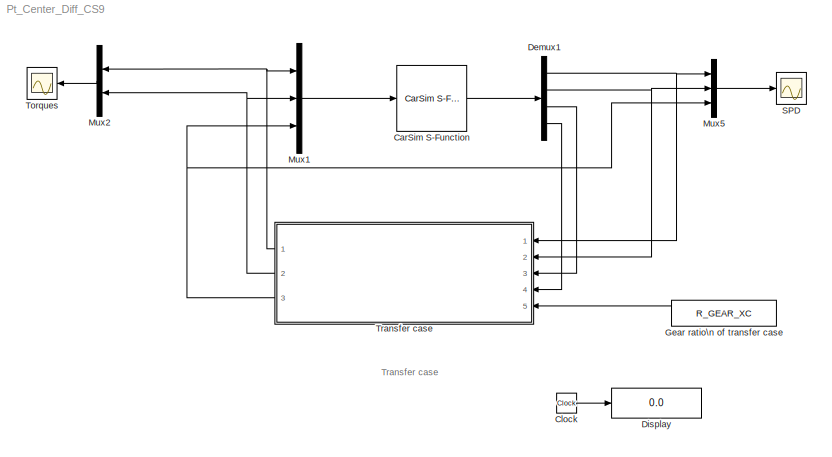
MODEL Pt_Center_Diff_CS9
KIND model
CONFIG PreLoadFcn = cd Extensions/Simulink/pt_center_diff\nRun_ft4wd_eclass\nlsd_parameta_eclass\ncd ../../..
BLOCK [Reference] CarSim S-Function  REF=Solver_SF/CarSim S-Function
  Ports = [1, 1]
  Priority = 1
  SID = 1
  SIMFILE = simfile.sim
  SourceBlock = Solver_SF/CarSim S-Function
  SourceType = Vehicle math model library
BLOCK [Clock] Clock
  Decimation = 10
  SID = 2
BLOCK [Demux] Demux1
  Ports = [1, 4]
  SID = 3
BLOCK [Display] Display
  Decimation = 1
  Lockdown = off
  Ports = [1]
  SID = 4
BLOCK [Constant] Gear ratio\n of transfer case
  SID = 5
  Value = R_GEAR_XC
BLOCK [Mux] Mux1
  DisplayOption = bar
  Inputs = 3
  Ports = [3, 1]
  SID = 7
BLOCK [Mux] Mux2
  DisplayOption = bar
  Inputs = 2
  Ports = [2, 1]
  SID = 8
BLOCK [Mux] Mux5
  DisplayOption = bar
  Inputs = 3
  Ports = [3, 1]
  SID = 9
BLOCK [Scope] SPD
  DataFormat = StructureWithTime
  Floating = off
  LimitDataPoints = off
  NumInputPorts = 1
  Ports = [1]
  SID = 10
  YMax = 3627.22
  YMin = -130.178
BLOCK [Scope] Torques
  DataFormat = StructureWithTime
  Floating = off
  LimitDataPoints = off
  NumInputPorts = 1
  Ports = [1]
  SID = 11
  YMax = 1200
  YMin = 0
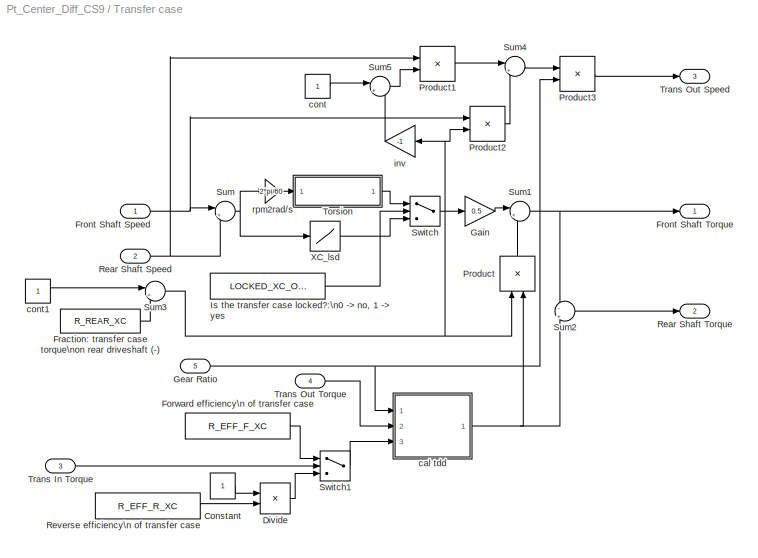
BLOCK [SubSystem] Transfer case
  FunctionWithSeparateData = off
  MaskHideContents = off
  MinAlgLoopOccurrences = off
  Opaque = off
  Ports = [5, 3]
  PropExecContextOutsideSubsystem = off
  RTWSystemCode = Auto
  RequestExecContextInheritance = off
  SID = 12
BLOCK [Constant] Transfer case/Constant
  SID = 18
BLOCK [Product] Transfer case/Divide
  Inputs = */
  Ports = [2, 1]
  RndMeth = Floor
  SID = 19
  SaturateOnIntegerOverflow = off
BLOCK [Constant] Transfer case/Forward efficiency\n of  transfer case
  SID = 20
  Value = R_EFF_F_XC
BLOCK [Constant] Transfer case/Fraction: transfer case torque\non rear driveshaft (-)
  SID = 21
  Value = R_REAR_XC
BLOCK [Inport] Transfer case/Front Shaft Speed
  IconDisplay = Port number
  SID = 13
BLOCK [Outport] Transfer case/Front Shaft Torque
  IconDisplay = Port number
  SID = 60
BLOCK [Gain] Transfer case/Gain
  Gain = 0.5
  SID = 22
BLOCK [Inport] Transfer case/Gear Ratio
  IconDisplay = Port number
  Port = 5
  SID = 17
BLOCK [Constant] Transfer case/Is the transfer case locked?:\n0 -> no, 1 -> yes
  SID = 23
  Value = LOCKED_XC_OPT
BLOCK [Product] Transfer case/Product
  Ports = [2, 1]
  RndMeth = Floor
  SID = 24
BLOCK [Product] Transfer case/Product1
  Ports = [2, 1]
  RndMeth = Floor
  SID = 25
BLOCK [Product] Transfer case/Product2
  Ports = [2, 1]
  RndMeth = Floor
  SID = 26
BLOCK [Product] Transfer case/Product3
  Ports = [2, 1]
  RndMeth = Floor
  SID = 27
BLOCK [Inport] Transfer case/Rear Shaft Speed
  IconDisplay = Port number
  Port = 2
  SID = 14
BLOCK [Outport] Transfer case/Rear Shaft Torque
  IconDisplay = Port number
  Port = 2
  SID = 61
BLOCK [Constant] Transfer case/Reverse efficiency\n of transfer case
  SID = 28
  Value = R_EFF_R_XC
BLOCK [Sum] Transfer case/Sum
  IconShape = round
  Inputs = |+-
  Ports = [2, 1]
  SID = 29
BLOCK [Sum] Transfer case/Sum1
  IconShape = round
  Inputs = |++
  Ports = [2, 1]
  SID = 30
BLOCK [Sum] Transfer case/Sum2
  IconShape = round
  Inputs = -|+
  Ports = [2, 1]
  SID = 31
BLOCK [Sum] Transfer case/Sum3
  IconShape = round
  Inputs = |+-
  Ports = [2, 1]
  SID = 32
BLOCK [Sum] Transfer case/Sum4
  IconShape = round
  Inputs = |++
  Ports = [2, 1]
  SID = 33
BLOCK [Sum] Transfer case/Sum5
  IconShape = round
  Inputs = |++
  Ports = [2, 1]
  SID = 34
BLOCK [Switch] Transfer case/Switch
  SID = 35
  Threshold = 0.5
BLOCK [Switch] Transfer case/Switch1
  SID = 36
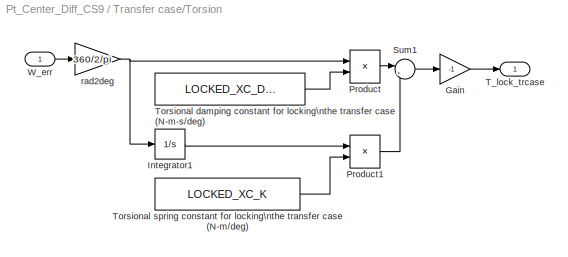
BLOCK [SubSystem] Transfer case/Torsion
  FunctionWithSeparateData = off
  MaskHideContents = off
  MinAlgLoopOccurrences = off
  Opaque = off
  Ports = [1, 1]
  PropExecContextOutsideSubsystem = off
  RTWSystemCode = Auto
  RequestExecContextInheritance = off
  SID = 37
BLOCK [Gain] Transfer case/Torsion/Gain
  Gain = -1
  SID = 39
BLOCK [Integrator] Transfer case/Torsion/Integrator1
  Ports = [1, 1]
  SID = 40
BLOCK [Product] Transfer case/Torsion/Product
  Ports = [2, 1]
  RndMeth = Floor
  SID = 41
BLOCK [Product] Transfer case/Torsion/Product1
  Ports = [2, 1]
  RndMeth = Floor
  SID = 42
BLOCK [Sum] Transfer case/Torsion/Sum1
  IconShape = round
  Inputs = |++
  Ports = [2, 1]
  SID = 43
BLOCK [Outport] Transfer case/Torsion/T_lock_trcase
  IconDisplay = Port number
  SID = 47
BLOCK [Constant] Transfer case/Torsion/Torsional damping constant for locking\nthe transfer case (N-m-s//deg)
  SID = 44
  Value = LOCKED_XC_DAMP
BLOCK [Constant] Transfer case/Torsion/Torsional spring constant for locking\nthe transfer case (N-m//deg)
  SID = 45
  Value = LOCKED_XC_K
BLOCK [Inport] Transfer case/Torsion/W_err
  IconDisplay = Port number
  SID = 38
BLOCK [Gain] Transfer case/Torsion/rad2deg
  Gain = 360/2/pi
  SID = 46
BLOCK [Inport] Transfer case/Trans In Torque
  IconDisplay = Port number
  Port = 3
  SID = 15
BLOCK [Outport] Transfer case/Trans Out Speed
  IconDisplay = Port number
  Port = 3
  SID = 62
BLOCK [Inport] Transfer case/Trans Out Torque
  IconDisplay = Port number
  Port = 4
  SID = 16
BLOCK [Lookup] Transfer case/XC_lsd
  InputValues = M_DIFF_XC_TABLE(:,1)
  SID = 48
  Table = M_DIFF_XC_TABLE(:,2)
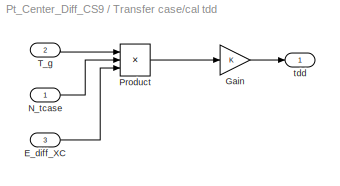
BLOCK [SubSystem] Transfer case/cal tdd
  FunctionWithSeparateData = off
  MaskHideContents = off
  MinAlgLoopOccurrences = off
  Opaque = off
  Ports = [3, 1]
  PropExecContextOutsideSubsystem = off
  RTWSystemCode = Auto
  RequestExecContextInheritance = off
  SID = 49
BLOCK [Inport] Transfer case/cal tdd/E_diff_XC
  IconDisplay = Port number
  Port = 3
  SID = 52
BLOCK [Gain] Transfer case/cal tdd/Gain
  SID = 53
BLOCK [Inport] Transfer case/cal tdd/N_tcase
  IconDisplay = Port number
  SID = 50
BLOCK [Product] Transfer case/cal tdd/Product
  Inputs = 3
  Ports = [3, 1]
  RndMeth = Floor
  SID = 54
BLOCK [Inport] Transfer case/cal tdd/T_g
  IconDisplay = Port number
  Port = 2
  SID = 51
BLOCK [Outport] Transfer case/cal tdd/tdd
  IconDisplay = Port number
  SID = 55
BLOCK [Constant] Transfer case/cont
  SID = 56
BLOCK [Constant] Transfer case/cont1
  SID = 57
BLOCK [Gain] Transfer case/inv
  Gain = -1
  SID = 58
BLOCK [Gain] Transfer case/rpm2rad//s
  Gain = 2*pi/60
  SID = 59
ANNOTATION (root): Transfer case
LINE CarSim S-Function:1 -> Demux1:1
LINE Clock:1 -> Display:1
NET Demux1:1 -> Mux5:1, Transfer case:1
NET Demux1:2 -> Mux5:2, Transfer case:2
LINE Demux1:3 -> Transfer case:3
LINE Demux1:4 -> Transfer case:4
LINE Gear ratio\n of transfer case:1 -> Transfer case:5
LINE Mux1:1 -> CarSim S-Function:1
LINE Mux2:1 -> Torques:1
LINE Mux5:1 -> SPD:1
LINE Transfer case/Constant:1 -> Transfer case/Divide:1
LINE Transfer case/Divide:1 -> Transfer case/Switch1:3
LINE Transfer case/Forward efficiency\n of  transfer case:1 -> Transfer case/Switch1:1
LINE Transfer case/Fraction: transfer case torque\non rear driveshaft (-):1 -> Transfer case/Sum3:2
NET Transfer case/Front Shaft Speed:1 -> Transfer case/Product2:1, Transfer case/Sum:1
LINE Transfer case/Gain:1 -> Transfer case/Sum1:1
NET Transfer case/Gear Ratio:1 -> Transfer case/Product3:2, Transfer case/cal tdd:1
LINE Transfer case/Is the transfer case locked?:\n0 -> no, 1 -> yes:1 -> Transfer case/Switch:2
LINE Transfer case/Product1:1 -> Transfer case/Sum4:1
LINE Transfer case/Product2:1 -> Transfer case/Sum4:2
LINE Transfer case/Product3:1 -> Transfer case/Trans Out Speed:1
LINE Transfer case/Product:1 -> Transfer case/Sum1:2
NET Transfer case/Rear Shaft Speed:1 -> Transfer case/Product1:1, Transfer case/Sum:2
LINE Transfer case/Reverse efficiency\n of transfer case:1 -> Transfer case/Divide:2
NET Transfer case/Sum1:1 -> Transfer case/Front Shaft Torque:1, Transfer case/Sum2:1
LINE Transfer case/Sum2:1 -> Transfer case/Rear Shaft Torque:1
NET Transfer case/Sum3:1 -> Transfer case/Product2:2, Transfer case/Product:1, Transfer case/inv:1
LINE Transfer case/Sum4:1 -> Transfer case/Product3:1
LINE Transfer case/Sum5:1 -> Transfer case/Product1:2
NET Transfer case/Sum:1 -> Transfer case/XC_lsd:1, Transfer case/rpm2rad//s:1
LINE Transfer case/Switch1:1 -> Transfer case/cal tdd:3
LINE Transfer case/Switch:1 -> Transfer case/Gain:1
LINE Transfer case/Torsion/Gain:1 -> Transfer case/Torsion/T_lock_trcase:1
LINE Transfer case/Torsion/Integrator1:1 -> Transfer case/Torsion/Product1:1
LINE Transfer case/Torsion/Product1:1 -> Transfer case/Torsion/Sum1:2
LINE Transfer case/Torsion/Product:1 -> Transfer case/Torsion/Sum1:1
LINE Transfer case/Torsion/Sum1:1 -> Transfer case/Torsion/Gain:1
LINE Transfer case/Torsion/Torsional damping constant for locking\nthe transfer case (N-m-s//deg):1 -> Transfer case/Torsion/Product:2
LINE Transfer case/Torsion/Torsional spring constant for locking\nthe transfer case (N-m//deg):1 -> Transfer case/Torsion/Product1:2
LINE Transfer case/Torsion/W_err:1 -> Transfer case/Torsion/rad2deg:1
NET Transfer case/Torsion/rad2deg:1 -> Transfer case/Torsion/Integrator1:1, Transfer case/Torsion/Product:1
LINE Transfer case/Torsion:1 -> Transfer case/Switch:1
LINE Transfer case/Trans In Torque:1 -> Transfer case/Switch1:2
LINE Transfer case/Trans Out Torque:1 -> Transfer case/cal tdd:2
LINE Transfer case/XC_lsd:1 -> Transfer case/Switch:3
LINE Transfer case/cal tdd/E_diff_XC:1 -> Transfer case/cal tdd/Product:3
LINE Transfer case/cal tdd/Gain:1 -> Transfer case/cal tdd/tdd:1
LINE Transfer case/cal tdd/N_tcase:1 -> Transfer case/cal tdd/Product:2
LINE Transfer case/cal tdd/Product:1 -> Transfer case/cal tdd/Gain:1
LINE Transfer case/cal tdd/T_g:1 -> Transfer case/cal tdd/Product:1
NET Transfer case/cal tdd:1 -> Transfer case/Product:2, Transfer case/Sum2:2
LINE Transfer case/cont1:1 -> Transfer case/Sum3:1
LINE Transfer case/cont:1 -> Transfer case/Sum5:1
LINE Transfer case/inv:1 -> Transfer case/Sum5:2
LINE Transfer case/rpm2rad//s:1 -> Transfer case/Torsion:1
NET Transfer case:1 -> Mux1:1, Mux2:1
NET Transfer case:2 -> Mux1:2, Mux2:2
NET Transfer case:3 -> Mux1:3, Mux5:3
note: NET lines group one-source signal fan-out (src -> all destinations, sorted); 1:1 wires keep LINE
